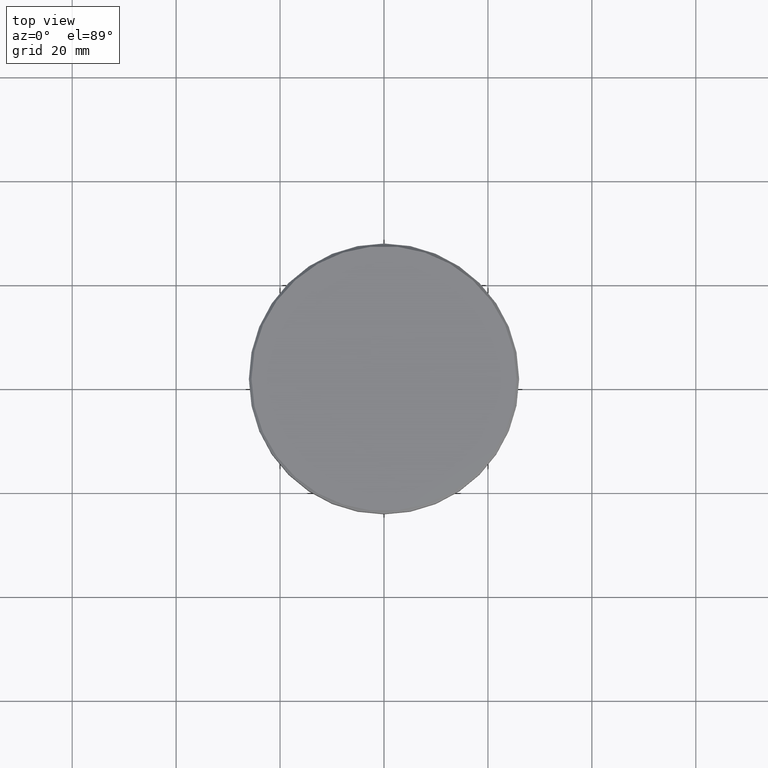
[diagram: clean part render]
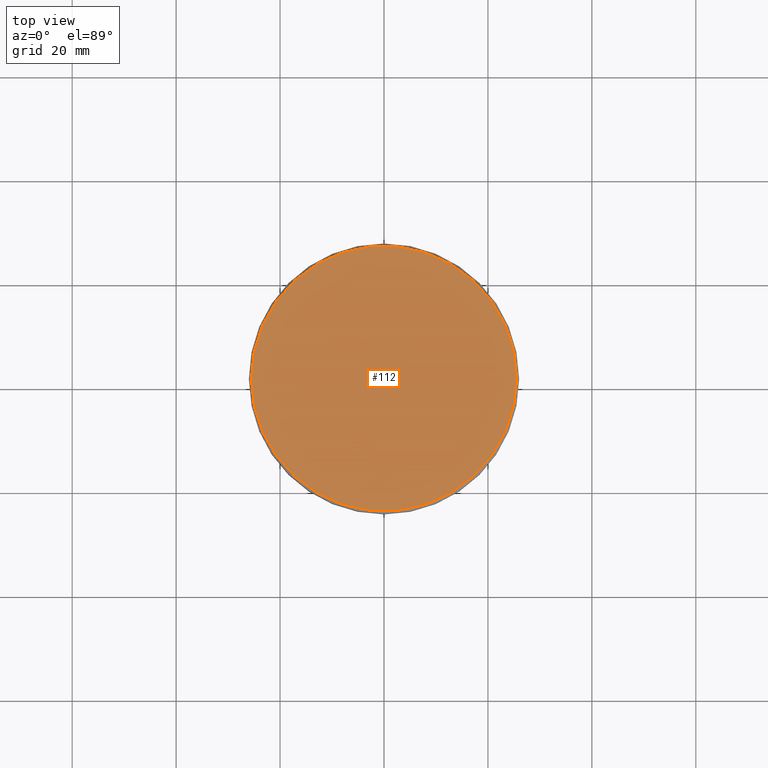
[diagram: same view with one face highlighted and labeled with its STEP entity id]
A machine part, top view. The second image highlights one B-rep face of the part: STEP entity #112.
In plain terms, the highlighted planar face has unit normal (0, -0, 1).
Its self-contained STEP definition (entity closure, byte-faithful):
#15 = ORIENTED_EDGE ( 'NONE', *, *, #618, .T. ) ;
#34 = DIRECTION ( 'NONE',  ( 1.000000000000000000, 0.000000000000000000, 0.000000000000000000 ) ) ;
#62 = AXIS2_PLACEMENT_3D ( 'NONE', #1027, #401, #948 ) ;
#111 = AXIS2_PLACEMENT_3D ( 'NONE', #576, #936, #34 ) ;
#112 = ADVANCED_FACE ( 'NONE', ( #117 ), #953, .T. ) ;
#117 = FACE_OUTER_BOUND ( 'NONE', #1003, .T. ) ;
#135 = EDGE_CURVE ( 'NONE', #759, #994, #423, .T. ) ;
#285 = DIRECTION ( 'NONE',  ( 0.000000000000000000, -0.000000000000000000, 1.000000000000000000 ) ) ;
#401 = DIRECTION ( 'NONE',  ( -0.000000000000000000, -0.000000000000000000, 1.000000000000000000 ) ) ;
#423 = CIRCLE ( 'NONE', #62, 25.49999999999995737 ) ;
#478 = AXIS2_PLACEMENT_3D ( 'NONE', #749, #285, #567 ) ;
#567 = DIRECTION ( 'NONE',  ( 1.000000000000000000, 0.000000000000000000, 0.000000000000000000 ) ) ;
#576 = CARTESIAN_POINT ( 'NONE',  ( 0.000000000000000000, 0.000000000000000000, 0.000000000000000000 ) ) ;
#618 = EDGE_CURVE ( 'NONE', #994, #759, #935, .T. ) ;
#749 = CARTESIAN_POINT ( 'NONE',  ( 0.000000000000000000, 0.000000000000000000, 0.000000000000000000 ) ) ;
#759 = VERTEX_POINT ( 'NONE', #959 ) ;
#935 = CIRCLE ( 'NONE', #111, 25.49999999999995737 ) ;
#936 = DIRECTION ( 'NONE',  ( -0.000000000000000000, -0.000000000000000000, 1.000000000000000000 ) ) ;
#948 = DIRECTION ( 'NONE',  ( 1.000000000000000000, 0.000000000000000000, 0.000000000000000000 ) ) ;
#953 = PLANE ( 'NONE',  #478 ) ;
#959 = CARTESIAN_POINT ( 'NONE',  ( -25.49999999999995737, 0.000000000000000000, 0.000000000000000000 ) ) ;
#994 = VERTEX_POINT ( 'NONE', #1152 ) ;
#1003 = EDGE_LOOP ( 'NONE', ( #1114, #15 ) ) ;
#1027 = CARTESIAN_POINT ( 'NONE',  ( 0.000000000000000000, 0.000000000000000000, 0.000000000000000000 ) ) ;
#1114 = ORIENTED_EDGE ( 'NONE', *, *, #135, .T. ) ;
#1152 = CARTESIAN_POINT ( 'NONE',  ( 25.49999999999995737, 3.153465507804431643E-15, 0.000000000000000000 ) ) ;